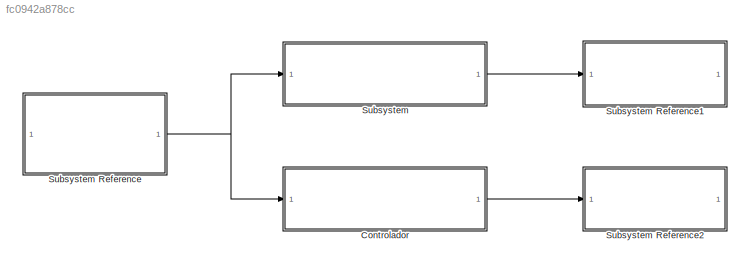
MODEL slx_fc0942a878cc
KIND model
CONFIG AbsTol = auto
CONFIG EnableMultiTasking = on
CONFIG FixedStep = auto
CONFIG MaxStep = auto
CONFIG MinStep = auto
CONFIG RelTol = 1e-3
CONFIG SampleTimeConstraint = Unconstrained
CONFIG SolverName = FixedStepAuto
CONFIG StartTime = 0.0
CONFIG StopTime = inf
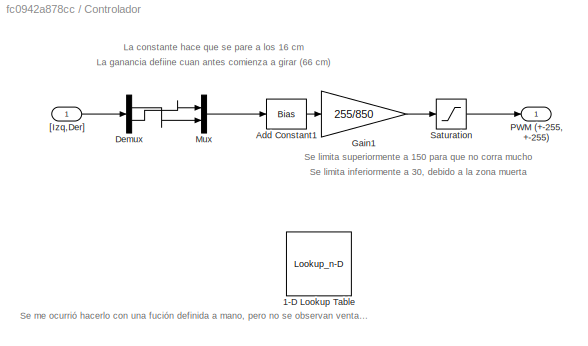
BLOCK [SubSystem] Controlador
BLOCK [Lookup_n-D] Controlador/1-D Lookup Table
  BreakpointsForDimension1 = [0;180;220;260;300;400;750;800]
  BreakpointsForDimension1DataTypeStr = double
  Commented = on
  ExtrapMethod = Clip
  FractionDataTypeStr = double
  InputPortMap = u0
  IntermediateResultsDataTypeStr = double
  InternalRulePriority = Speed
  NumberOfTableDimensions = 1
  OutDataTypeStr = double
  RndMeth = Simplest
  Table = [0;0;5;20;75;90;100;100]
  TableDataTypeStr = double
BLOCK [Bias] Controlador/Add Constant1
  Bias = -160
  SaturateOnIntegerOverflow = off
BLOCK [Demux] Controlador/Demux
  Outputs = 2
BLOCK [Gain] Controlador/Gain1
  Gain = 255/850
BLOCK [Mux] Controlador/Mux
  DisplayOption = bar
  Inputs = 2
BLOCK [Outport] Controlador/PWM (+-255, +-255)
BLOCK [Saturate] Controlador/Saturation
  LowerLimit = 0
  UpperLimit = 150
BLOCK [Inport] Controlador/[Izq,Der]
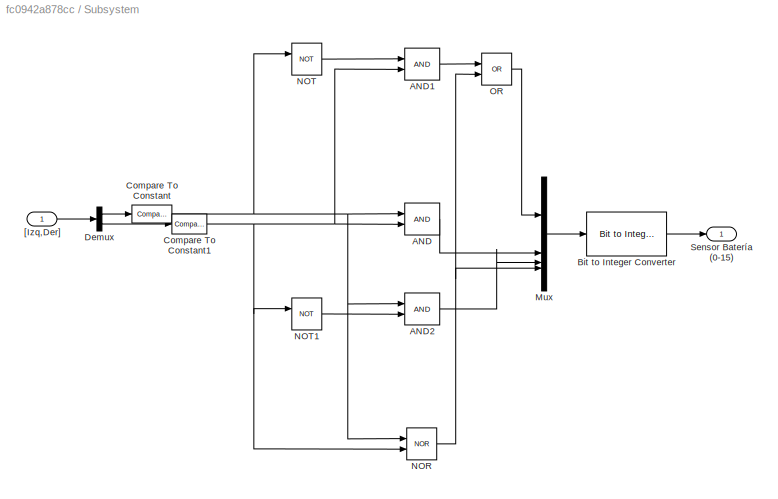
BLOCK [SubSystem] Subsystem
BLOCK [SubSystem] Subsystem Reference
  ReferencedSubsystem = Sub_Laser
BLOCK [SubSystem] Subsystem Reference1
  ReferencedSubsystem = Sub_Led
BLOCK [SubSystem] Subsystem Reference2
  ReferencedSubsystem = Sub_Motores
BLOCK [Logic] Subsystem/AND
  AllPortsSameDT = off
  IconShape = distinctive
  OutDataTypeStr = boolean
BLOCK [Logic] Subsystem/AND1
  AllPortsSameDT = off
  IconShape = distinctive
  OutDataTypeStr = boolean
BLOCK [Logic] Subsystem/AND2
  AllPortsSameDT = off
  IconShape = distinctive
  OutDataTypeStr = boolean
BLOCK [Reference] Subsystem/Bit to Integer Converter  REF=simulink/Logic and Bit
Operations/Bit to Integer
Converter
  SourceBlock = simulink/Logic and Bit\nOperations/Bit to Integer\nConverter
  SourceType = Bit to Integer Converter
BLOCK [Reference] Subsystem/Compare To Constant  REF=simulink/Logic and Bit
Operations/Compare
To Constant
  SourceBlock = simulink/Logic and Bit\nOperations/Compare\nTo Constant
  SourceType = Compare To Constant
BLOCK [Reference] Subsystem/Compare To Constant1  REF=simulink/Logic and Bit
Operations/Compare
To Constant
  SourceBlock = simulink/Logic and Bit\nOperations/Compare\nTo Constant
  SourceType = Compare To Constant
BLOCK [Demux] Subsystem/Demux
  Outputs = 2
BLOCK [Mux] Subsystem/Mux
  DisplayOption = bar
BLOCK [Logic] Subsystem/NOR
  AllPortsSameDT = off
  IconShape = distinctive
  Operator = NOR
  OutDataTypeStr = boolean
BLOCK [Logic] Subsystem/NOT
  AllPortsSameDT = off
  IconShape = distinctive
  Operator = NOT
  OutDataTypeStr = boolean
BLOCK [Logic] Subsystem/NOT1
  AllPortsSameDT = off
  IconShape = distinctive
  Operator = NOT
  OutDataTypeStr = boolean
BLOCK [Logic] Subsystem/OR
  AllPortsSameDT = off
  IconShape = distinctive
  Operator = OR
  OutDataTypeStr = boolean
BLOCK [Outport] Subsystem/Sensor Batería (0-15)
BLOCK [Inport] Subsystem/[Izq,Der]
ANNOTATION Controlador: La constante hace que se pare a los 16 cm
ANNOTATION Controlador: La ganancia defiine cuan antes comienza a girar (66 cm)
ANNOTATION Controlador: Se limita inferiormente a 30, debido a la zona muerta
ANNOTATION Controlador: Se limita superiormente a 150 para que no corra mucho
ANNOTATION Controlador: Se me ocurrió hacerlo con una fución definida a mano, pero no se observan ventajas evidentes
LINE Controlador/Add Constant1:1 -> Controlador/Gain1:1
LINE Controlador/Demux:1 -> Controlador/Mux:2
LINE Controlador/Demux:2 -> Controlador/Mux:1
LINE Controlador/Gain1:1 -> Controlador/Saturation:1
LINE Controlador/Mux:1 -> Controlador/Add Constant1:1
LINE Controlador/Saturation:1 -> Controlador/PWM (+-255, +-255):1
LINE Controlador/[Izq,Der]:1 -> Controlador/Demux:1
LINE Controlador:1 -> Subsystem Reference2:1
NET Subsystem Reference:1 -> Controlador:1, Subsystem:1
LINE Subsystem/AND1:1 -> Subsystem/OR:1
LINE Subsystem/AND2:1 -> Subsystem/Mux:3
LINE Subsystem/AND:1 -> Subsystem/Mux:2
LINE Subsystem/Bit to Integer Converter:1 -> Subsystem/Sensor Batería (0-15):1
NET Subsystem/Compare To Constant1:1 -> Subsystem/AND1:2, Subsystem/AND:2, Subsystem/NOR:2, Subsystem/NOT1:1
NET Subsystem/Compare To Constant:1 -> Subsystem/AND2:1, Subsystem/AND:1, Subsystem/NOR:1, Subsystem/NOT:1
LINE Subsystem/Demux:1 -> Subsystem/Compare To Constant:1
LINE Subsystem/Demux:2 -> Subsystem/Compare To Constant1:1
LINE Subsystem/Mux:1 -> Subsystem/Bit to Integer Converter:1
NET Subsystem/NOR:1 -> Subsystem/Mux:4, Subsystem/OR:2
LINE Subsystem/NOT1:1 -> Subsystem/AND2:2
LINE Subsystem/NOT:1 -> Subsystem/AND1:1
LINE Subsystem/OR:1 -> Subsystem/Mux:1
LINE Subsystem/[Izq,Der]:1 -> Subsystem/Demux:1
LINE Subsystem:1 -> Subsystem Reference1:1
note: NET lines group one-source signal fan-out (src -> all destinations, sorted); 1:1 wires keep LINE
